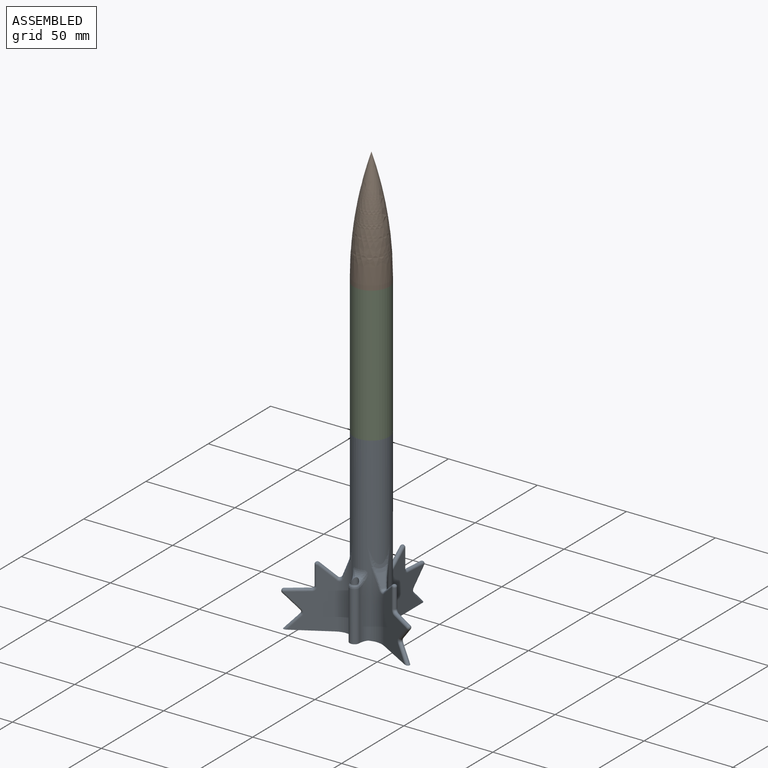
[diagram: assembled view]
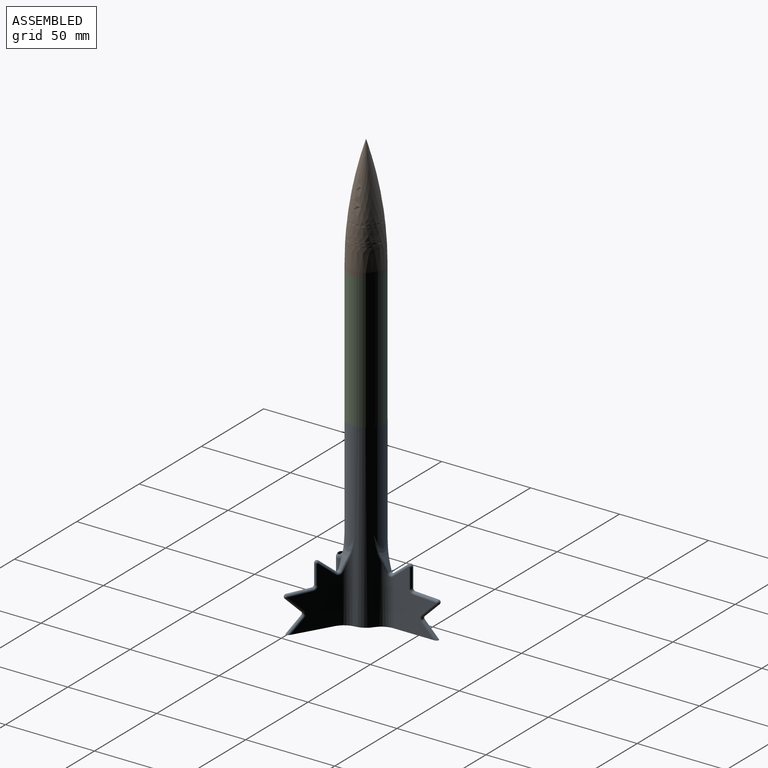
[diagram: assembled view, second angle]
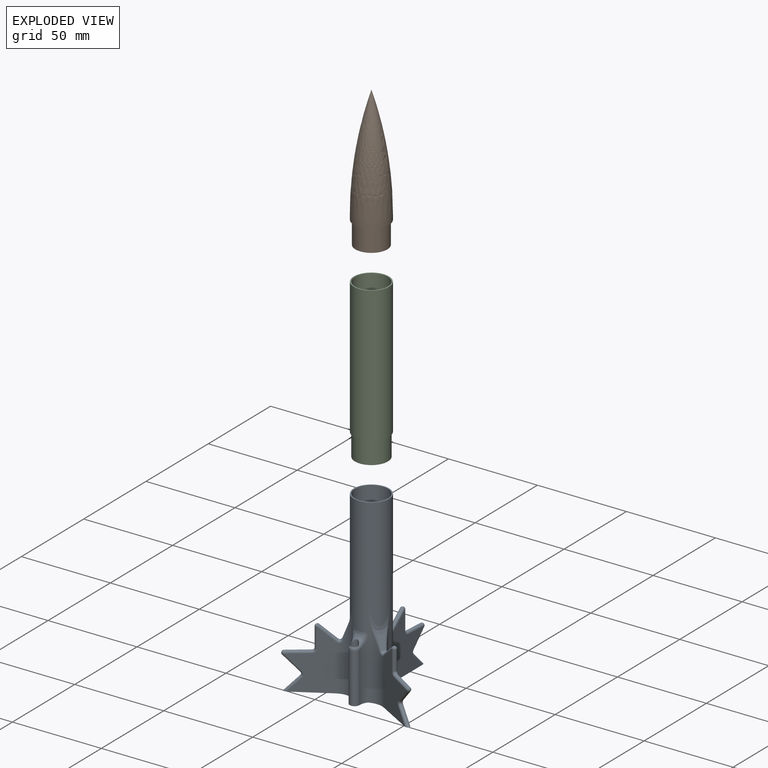
[diagram: exploded view]
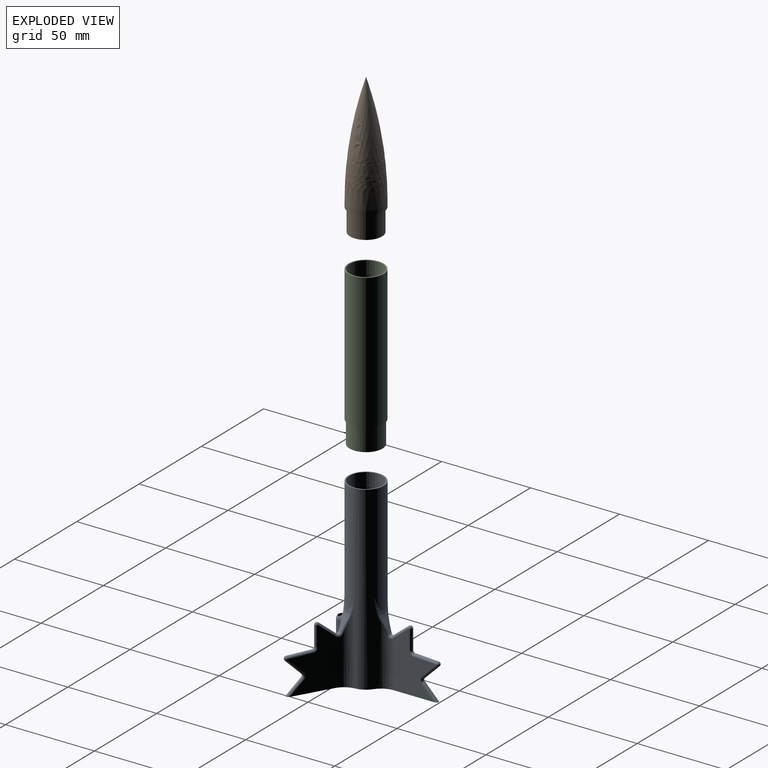
[diagram: exploded view, second angle]
ASSEMBLY  parts=3 mates=2
PART A: 93 faces, bbox 75x65.7x104.1 mm
  f0: cylinder r=9.28mm len=18.57mm, axis (0,0,-1), area 889mm2, adj f3,f89
  f1: cylinder r=9.28mm len=73.66mm, axis (0,0,-1), area 4288.1mm2, adj f4,f90,f91,f92
  f2: cylinder r=9.92mm len=101.6mm, axis (0,0,-1), area 4530.9mm2, adj f3,f4,f9,f10,f11,f34,f35,f36
  f3: plane 19.84x19.84mm, normal (0,0,1), area 38.3mm2, adj f0,f2
  f4: plane 73.57x64.35mm, normal (0,0,-1), area 334.1mm2, adj f1,f2,f6,f7,f9,f10,f12,f30
  f5: plane 0.34x0.27mm, normal (0,-0.63,0.78), area 0mm2, adj f22,f25,f26
  f6: plane 33.37x23.9mm, normal (1,0,0), area 454.2mm2, adj f4,f10,f12,f13,f14,f16,f17,f18
  f7: plane 33.37x23.9mm, normal (-1,0,0), area 454.2mm2, adj f4,f9,f12,f13,f14,f16,f17,f18
  f8: plane 7.28x5.12mm, normal (0,0.93,0.37), area 23.6mm2, adj f11,f23,f26,f28
  f9: cylinder r=10.16mm len=47.29mm, axis (0,0,-1), area 308.7mm2, adj f2,f4,f7,f25,f27,f28,f29
  f10: cylinder r=10.16mm len=47.29mm, axis (0,0,-1), area 308.7mm2, adj f2,f4,f6,f20,f22,f23,f24
  f11: bspline ~22.86x12.7mm, area 62.5mm2, adj f2,f8,f20,f29
  f12: cylinder r=1.27mm len=8.14mm, axis (0,0.7,-0.71), area 40.7mm2, adj f4,f6,f7,f13
  f13: torus R=2.54mm, axis (1,0,0), area 10.9mm2, adj f6,f7,f12,f14
  f14: cylinder r=1.27mm len=9.37mm, axis (0,-0.71,-0.7), area 47.6mm2, adj f6,f7,f13,f15
  f15: sphere r=1.27mm, area 0mm2, adj f14,f16
  f16: cylinder r=1.27mm len=13.11mm, axis (0,1,-0.05), area 52.1mm2, adj f6,f7,f15,f17
  f17: torus R=2.54mm, axis (1,0,0), area 10.5mm2, adj f6,f7,f16,f18
  f18: cylinder r=1.27mm len=10.92mm, axis (0,0,-1), area 43.6mm2, adj f6,f7,f17,f19
  f19: sphere r=1.27mm, area 7.3mm2, adj f18,f21
  f20: bspline ~14.1x3.59mm, area 4.9mm2, adj f10,f11,f23
  f21: cylinder r=1.27mm len=9.26mm, axis (0,0.78,0.63), area 43.5mm2, adj f6,f7,f19,f22,f25
  f22: bspline ~1.27x1.26mm, area 0.8mm2, adj f5,f10,f21,f24
  f23: bspline ~7.75x3.29mm, area 10.9mm2, adj f8,f10,f20,f24
  f24: bspline ~4.01x2.32mm, area 5.9mm2, adj f10,f22,f23,f26
  f25: bspline ~1.27x1.26mm, area 0.8mm2, adj f5,f9,f21,f27
  f26: cylinder r=1.27mm len=1.98mm, axis (1,0,0), area 1.6mm2, adj f5,f8,f24,f27
  f27: bspline ~3.66x2.13mm, area 5.9mm2, adj f9,f25,f26,f28
  f28: bspline ~7.75x3.29mm, area 10.9mm2, adj f8,f9,f27,f29
  f29: bspline ~14.1x3.59mm, area 4.9mm2, adj f9,f11,f28
  f30: plane 33.37x20.7mm, normal (0.5,-0.87,0), area 454.2mm2, adj f4,f34,f37,f38,f39,f41,f42,f43
  f31: plane 33.37x20.7mm, normal (-0.5,0.87,0), area 454.2mm2, adj f4,f35,f37,f38,f39,f41,f42,f43
  f32: plane 0.29x0.27mm, normal (0.55,0.32,0.78), area 0mm2, adj f47,f50,f51
  f33: plane 7.28x4.43mm, normal (-0.8,-0.46,0.37), area 23.6mm2, adj f36,f48,f51,f53
  f34: cylinder r=10.16mm len=47.29mm, axis (0,0,-1), area 308.7mm2, adj f2,f4,f30,f50,f52,f53,f54,f80
  f35: cylinder r=10.16mm len=47.29mm, axis (0,0,-1), area 308.7mm2, adj f2,f4,f31,f45,f47,f48,f49
  f36: bspline ~19.8x12.7mm, area 62.5mm2, adj f2,f33,f45,f54
  f37: cylinder r=1.27mm len=8.14mm, axis (-0.61,-0.35,-0.71), area 40.7mm2, adj f4,f30,f31,f38
  f38: torus R=2.54mm, axis (-0.5,0.87,0), area 10.9mm2, adj f30,f31,f37,f39
  f39: cylinder r=1.27mm len=9.29mm, axis (0.62,0.36,-0.7), area 47.6mm2, adj f30,f31,f38,f40
  f40: sphere r=1.27mm, area 0mm2, adj f39,f41
  f41: cylinder r=1.27mm len=12.57mm, axis (-0.86,-0.5,-0.05), area 52.1mm2, adj f30,f31,f40,f42
  f42: torus R=2.54mm, axis (-0.5,0.87,0), area 10.5mm2, adj f30,f31,f41,f43
  f43: cylinder r=1.27mm len=10.92mm, axis (0,0,-1), area 43.6mm2, adj f30,f31,f42,f44
  f44: sphere r=1.27mm, area 7.3mm2, adj f43,f46
  f45: bspline ~14.1x4.54mm, area 4.9mm2, adj f35,f36,f48
  f46: cylinder r=1.27mm len=8.9mm, axis (-0.67,-0.39,0.63), area 43.5mm2, adj f30,f31,f44,f47,f50
  f47: bspline ~1.62x1.26mm, area 0.8mm2, adj f32,f35,f46,f49
  f48: bspline ~7.75x3.99mm, area 10.9mm2, adj f33,f35,f45,f49
  f49: bspline ~3.3x3.07mm, area 5.9mm2, adj f35,f47,f48,f51
  f50: bspline ~1.66x1.26mm, area 0.8mm2, adj f32,f34,f46,f52
  f51: cylinder r=1.27mm len=2.55mm, axis (-0.5,0.87,0), area 1.6mm2, adj f32,f33,f49,f52
  f52: bspline ~3.55x2.13mm, area 5.9mm2, adj f34,f50,f51,f53
  f53: bspline ~7.75x4.2mm, area 10.9mm2, adj f33,f34,f52,f54
  f54: bspline ~14.1x4.29mm, area 4.9mm2, adj f34,f36,f53
  f55: plane 33.37x20.7mm, normal (0.5,0.87,0), area 454.2mm2, adj f4,f59,f62,f63,f64,f66,f67,f68
  f56: plane 33.37x20.7mm, normal (-0.5,-0.87,0), area 454.2mm2, adj f4,f60,f62,f63,f64,f66,f67,f68
  f57: plane 0.29x0.27mm, normal (-0.55,0.32,0.78), area 0mm2, adj f72,f75,f76
  f58: plane 7.28x4.43mm, normal (0.8,-0.46,0.37), area 23.6mm2, adj f61,f73,f76,f78
  f59: cylinder r=10.16mm len=47.29mm, axis (0,0,-1), area 308.7mm2, adj f2,f4,f55,f75,f77,f78,f79
  f60: cylinder r=10.16mm len=47.29mm, axis (0,0,-1), area 308.7mm2, adj f2,f4,f56,f70,f72,f73,f74,f81
  f61: bspline ~19.8x12.7mm, area 62.5mm2, adj f2,f58,f70,f79
  f62: cylinder r=1.27mm len=8.14mm, axis (0.61,-0.35,-0.71), area 40.7mm2, adj f4,f55,f56,f63
  f63: torus R=2.54mm, axis (-0.5,-0.87,0), area 10.9mm2, adj f55,f56,f62,f64
  f64: cylinder r=1.27mm len=9.29mm, axis (-0.62,0.36,-0.7), area 47.6mm2, adj f55,f56,f63,f65
  f65: sphere r=1.27mm, area 7.4mm2, adj f64,f66
  f66: cylinder r=1.27mm len=12.57mm, axis (0.86,-0.5,-0.05), area 52.1mm2, adj f55,f56,f65,f67
  f67: torus R=2.54mm, axis (-0.5,-0.87,0), area 10.5mm2, adj f55,f56,f66,f68
  f68: cylinder r=1.27mm len=10.92mm, axis (0,0,-1), area 43.6mm2, adj f55,f56,f67,f69
  f69: sphere r=1.27mm, area 7.3mm2, adj f68,f71
  f70: bspline ~14.1x4.28mm, area 4.9mm2, adj f60,f61,f73
  f71: cylinder r=1.27mm len=8.9mm, axis (0.67,-0.39,0.63), area 43.5mm2, adj f55,f56,f69,f72,f75
  f72: bspline ~1.66x1.26mm, area 0.8mm2, adj f57,f60,f71,f74
  f73: bspline ~7.75x4.2mm, area 10.9mm2, adj f58,f60,f70,f74
  f74: bspline ~3.87x2.32mm, area 5.9mm2, adj f60,f72,f73,f76
  f75: bspline ~1.62x1.26mm, area 0.8mm2, adj f57,f59,f71,f77
  f76: cylinder r=1.27mm len=2.55mm, axis (-0.5,-0.87,0), area 1.6mm2, adj f57,f58,f74,f77
  f77: bspline ~3.15x2.79mm, area 5.9mm2, adj f59,f75,f76,f78
  f78: bspline ~7.75x3.99mm, area 10.9mm2, adj f58,f59,f77,f79
  f79: bspline ~14.1x4.55mm, area 4.9mm2, adj f59,f61,f78
  f80: cylinder r=7.73mm len=33.12mm, axis (0,0,-1), area 149.7mm2, adj f4,f34,f82,f85
  f81: cylinder r=7.73mm len=33.12mm, axis (0,0,-1), area 149.7mm2, adj f4,f60,f82,f87
  f82: cylinder r=2.74mm len=28.08mm, axis (0,0,-1), area 242mm2, adj f4,f80,f81,f86
  f83: cylinder r=2.1mm len=31.93mm, axis (0,0,-1), area 400.6mm2, adj f4,f84,f85,f86,f87
  f84: torus R=15mm, axis (0,0,-1), area 20mm2, adj f2,f83,f85,f87
  f85: bspline ~7.92x5.73mm, area 17.4mm2, adj f2,f80,f83,f84,f86
  f86: bspline ~5.49x2.74mm, area 13.4mm2, adj f82,f83,f85,f87
  f87: bspline ~8x6.43mm, area 18.5mm2, adj f2,f81,f83,f84,f86
  f88: cylinder r=7.62mm len=15.24mm, axis (0,0,-1), area 608mm2, adj f89,f90
  f89: plane 18.57x18.57mm, normal (0,0,1), area 88.4mm2, adj f0,f88
  f90: plane 18.57x18.57mm, normal (0,0,-1), area 88.4mm2, adj f1,f88
  f91: cylinder r=2.54mm len=3.75mm, axis (0,0,-1), area 9.6mm2, adj f1,f4,f92
  f92: plane 3.75x1.02mm, normal (0,0,1), area 2.6mm2, adj f1,f91
PART B: 15 faces, bbox 19.8x19.8x78.7 mm
  f0: plane 18.57x18.57mm, normal (0,0,1), area 52mm2, adj f2,f14
  f1: cylinder r=8.98mm len=17.96mm, axis (0,0,-1), area 716.5mm2, adj f3,f12
  f2: cylinder r=8.34mm len=16.69mm, axis (0,0,-1), area 721.1mm2, adj f0,f3,f6,f7,f8,f9,f10
  f3: plane 17.96x17.96mm, normal (0,0,-1), area 79.4mm2, adj f1,f2,f4,f5,f7,f8,f9,f10
  f4: plane 13.2x6.35mm, normal (-1,0,0), area 83.8mm2, adj f3,f6,f7,f10
  f5: plane 13.2x6.35mm, normal (1,0,0), area 83.8mm2, adj f3,f6,f8,f9
  f6: plane 16.69x5.99mm, normal (0,0,1), area 44.9mm2, adj f2,f4,f5,f7,f8,f9,f10
  f7: cylinder r=1.27mm len=6.35mm, axis (0,0,-1), area 15.6mm2, adj f2,f3,f4,f6
  f8: cylinder r=1.27mm len=6.35mm, axis (0,0,-1), area 15.6mm2, adj f2,f3,f5,f6
  f9: cylinder r=1.27mm len=6.35mm, axis (0,0,-1), area 15.6mm2, adj f2,f3,f5,f6
  f10: cylinder r=1.27mm len=6.35mm, axis (0,0,-1), area 15.6mm2, adj f2,f3,f4,f6
  f11: cylinder r=9.92mm len=19.84mm, axis (0,0,1), area 158.3mm2, adj f12,f13
  f12: plane 19.84x19.84mm, normal (0,0,-1), area 55.8mm2, adj f1,f11
  f13: revolved ~63.5x19.84mm, area 2676.7mm2, adj f11
  f14: revolved ~61.39x18.57mm, area 2419.7mm2, adj f0
PART C: 14 faces, bbox 20x19.8x88.9 mm
  f0: cylinder r=9.28mm len=67.09mm, axis (0,0,-1), area 3688.2mm2, adj f2,f7,f8,f12,f13
  f1: cylinder r=9.92mm len=76.2mm, axis (0,0,-1), area 4748.9mm2, adj f2,f3
  f2: plane 19.84x19.84mm, normal (0,0,1), area 38.3mm2, adj f0,f1
  f3: plane 19.84x19.84mm, normal (0,0,-1), area 38.3mm2, adj f1,f4
  f4: cylinder r=9.28mm len=18.57mm, axis (0,0,1), area 740.8mm2, adj f3,f6
  f5: cylinder r=8.47mm len=19.05mm, axis (0,0,1), area 1013.9mm2, adj f6,f7
  f6: plane 18.57x18.57mm, normal (0,0,-1), area 45.3mm2, adj f4,f5
  f7: torus R=4.2mm, axis (0,0,-1), area 164.9mm2, adj f0,f5
  f8: cylinder r=4.19mm len=26.67mm, axis (0,0,1), area 227.1mm2, adj f0,f10,f11,f12,f13
  f9: cylinder r=1.65mm len=23.94mm, axis (0,0,1), area 216.3mm2, adj f12,f13
  f10: plane 2.66x0.38mm, normal (0,0,-1), area 0.7mm2, adj f8,f13
  f11: plane 2.66x0.38mm, normal (0,0,1), area 0.7mm2, adj f8,f12
  f12: torus R=5.47mm, axis (0,0,1), area 31mm2, adj f0,f8,f9,f11
  f13: torus R=5.47mm, axis (0,0,1), area 31mm2, adj f0,f8,f9,f10
PLACE A t=(22.43,63.32,-128.92)mm
PLACE B t=(22.43,63.32,36.18)mm
PLACE C t=(22.43,63.32,-27.32)mm
MATE fastened A.f0 <-> C.f0  axis (0,0,-1) through (22.43,63.32,-27.32)mm
MATE fastened C.f1 <-> B.f1  axis (0,0,1) through (22.43,63.32,48.88)mm
